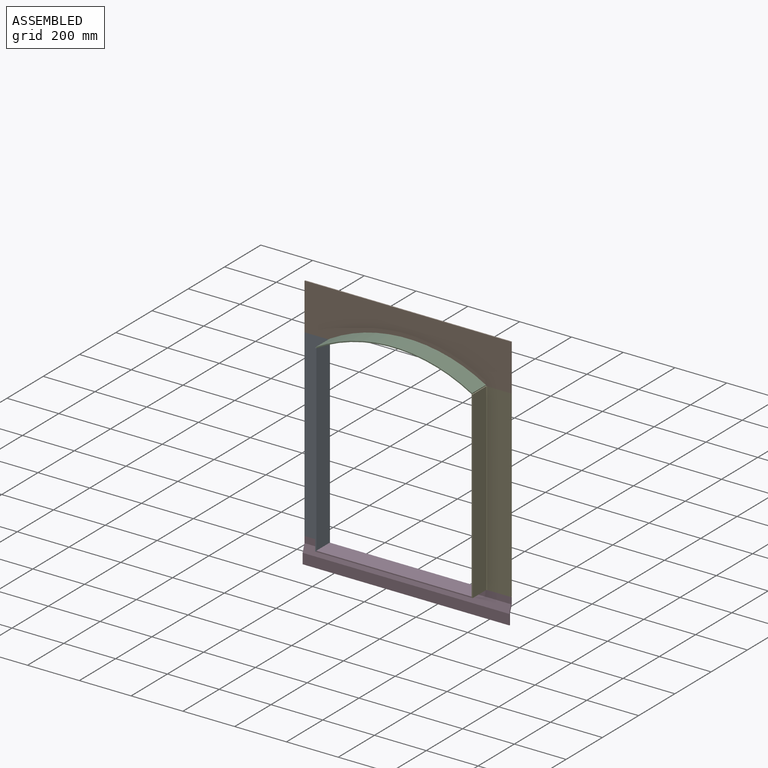
[diagram: assembled view]
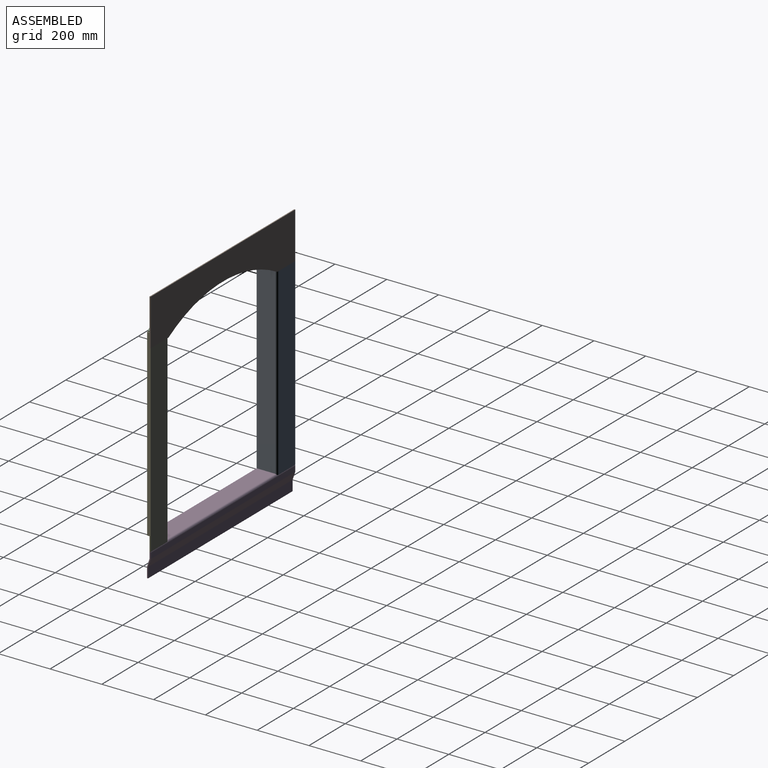
[diagram: assembled view, second angle]
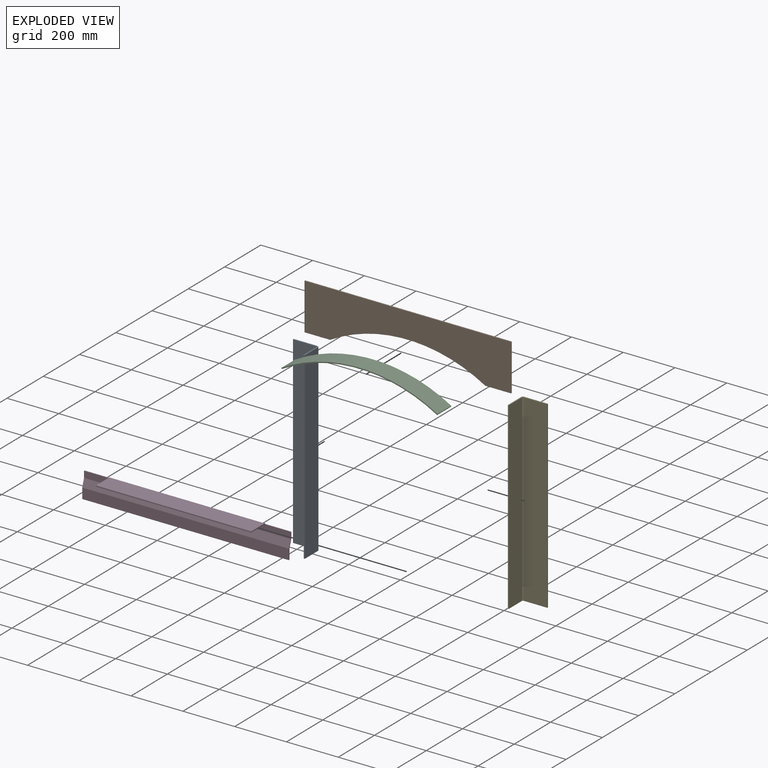
[diagram: exploded view]
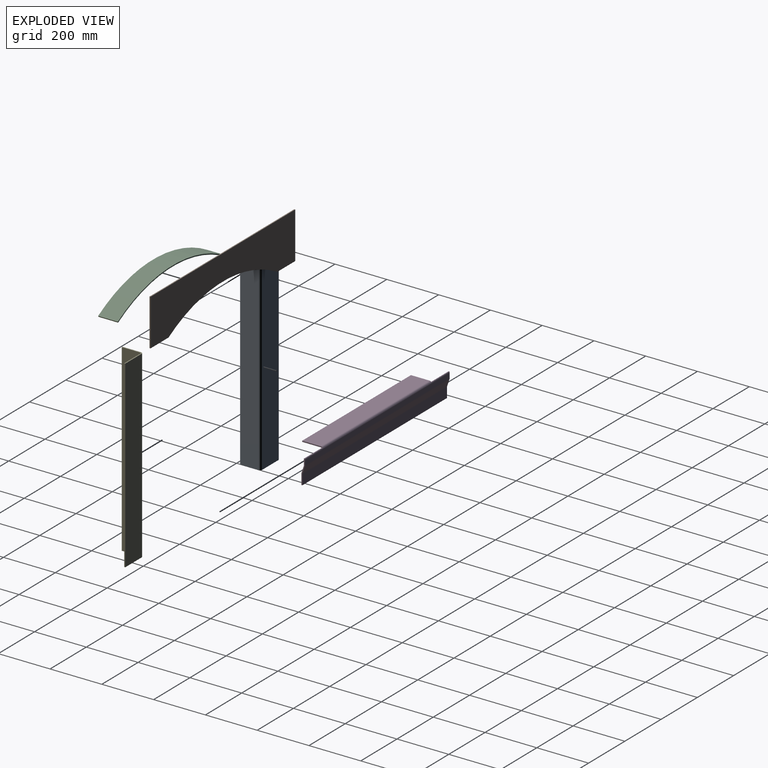
[diagram: exploded view, second angle]
ASSEMBLY  parts=5 mates=10
PART A: 10 faces, bbox 711x80x99 mm
  f0: plane 711x91mm, normal (0,1,0), area 64701mm2, adj f1,f6,f7,f9
  f1: plane 711x4mm, normal (0,0,1), area 2844mm2, adj f0,f2,f6,f7
  f2: plane 711x91mm, normal (0,-1,0), area 64701mm2, adj f1,f6,f7,f8
  f3: plane 711x72mm, normal (0,0,1), area 51192mm2, adj f4,f6,f7,f8
  f4: plane 711x4mm, normal (0,-1,0), area 2844mm2, adj f3,f5,f6,f7
  f5: plane 711x72mm, normal (0,0,-1), area 51192mm2, adj f4,f6,f7,f9
  f6: plane 99x80mm, normal (1,0,0), area 689.7mm2, adj f0,f1,f2,f3,f4,f5,f8,f9
  f7: plane 99x80mm, normal (-1,0,0), area 689.7mm2, adj f0,f1,f2,f3,f4,f5,f8,f9
  f8: cylinder r=4mm len=711mm, axis (1,0,0), area 4467.3mm2, adj f2,f3,f6,f7
  f9: cylinder r=8mm len=711mm, axis (-1,0,0), area 8934.7mm2, adj f0,f5,f6,f7
PART B: 8 faces, bbox 798x4x180 mm
  f0: cylinder r=596.06mm len=600mm, axis (0,1,0), area 2515mm2, adj f1,f5,f6,f7
  f1: plane 99x4mm, normal (0,0,-1), area 396mm2, adj f0,f2,f6,f7
  f2: plane 180x4mm, normal (1,0,0), area 720mm2, adj f1,f3,f6,f7
  f3: plane 798x4mm, normal (0,0,1), area 3192mm2, adj f2,f4,f6,f7
  f4: plane 180x4mm, normal (-1,0,0), area 720mm2, adj f3,f5,f6,f7
  f5: plane 99x4mm, normal (0,0,-1), area 396mm2, adj f0,f4,f6,f7
  f6: plane 798x180mm, normal (0,-1,0), area 110772.4mm2, adj f0,f1,f2,f3,f4,f5
  f7: plane 798x180mm, normal (0,1,0), area 110772.4mm2, adj f0,f1,f2,f3,f4,f5
PART C: 6 faces, bbox 604x76x85 mm
  f0: plane 76x3.46mm, normal (-0.86,0,-0.5), area 304mm2, adj f1,f3,f4,f5
  f1: cylinder r=596.06mm len=600mm, axis (0,1,0), area 47784.8mm2, adj f0,f2,f4,f5
  f2: plane 76x3.46mm, normal (0.86,0,-0.5), area 304mm2, adj f1,f3,f4,f5
  f3: cylinder r=600.06mm len=604.03mm, axis (0,1,0), area 48105.5mm2, adj f0,f2,f4,f5
  f4: plane 604.03x85mm, normal (0,-1,0), area 2523.4mm2, adj f0,f1,f2,f3
  f5: plane 604.03x85mm, normal (0,1,0), area 2523.4mm2, adj f0,f1,f2,f3
PART D: 18 faces, bbox 798x80x99 mm
  f0: plane 600x72mm, normal (0,0,1), area 43200mm2, adj f1,f12,f14,f17
  f1: plane 600x4mm, normal (0,-1,0), area 2400mm2, adj f0,f2,f12,f14
  f2: plane 600x72mm, normal (0,0,-1), area 43200mm2, adj f1,f12,f14,f16
  f3: plane 95x14mm, normal (1,0,0), area 378.6mm2, adj f5,f6,f7,f8,f9,f10,f11,f15
  f4: plane 95x14mm, normal (-1,0,0), area 378.6mm2, adj f5,f6,f7,f8,f9,f10,f11,f13
  f5: plane 798x25mm, normal (0,-1,0), area 17550mm2, adj f3,f4,f6,f12,f13,f14,f15,f16
  f6: plane 798x30mm, normal (0,-0.95,0.32), area 25235mm2, adj f3,f4,f5,f7
  f7: plane 798x40mm, normal (0,-1,0), area 31920mm2, adj f3,f4,f6,f8
  f8: plane 798x4mm, normal (0,0,-1), area 3192mm2, adj f3,f4,f7,f9
  f9: plane 798x40mm, normal (0,1,0), area 31920mm2, adj f3,f4,f8,f10
  f10: plane 798x30mm, normal (0,0.95,-0.32), area 25235mm2, adj f3,f4,f9,f11
  f11: plane 798x21mm, normal (0,1,0), area 16758mm2, adj f3,f4,f10,f17
  f12: plane 78.93x8mm, normal (-1,0,0), area 311.1mm2, adj f0,f1,f2,f5,f13,f16,f17
  f13: plane 99x2.93mm, normal (0,0,1), area 289.9mm2, adj f4,f5,f12,f17
  f14: plane 78.93x8mm, normal (1,0,0), area 311.1mm2, adj f0,f1,f2,f5,f15,f16,f17
  f15: plane 99x2.93mm, normal (0,0,1), area 289.9mm2, adj f3,f5,f14,f17
  f16: cylinder r=4mm len=600mm, axis (1,0,0), area 3769.9mm2, adj f2,f5,f12,f14
  f17: cylinder r=8mm len=798mm, axis (-1,0,0), area 8369.2mm2, adj f0,f3,f4,f11,f12,f13,f14,f15
PART E: same geometry as A
PLACE A rot(axis=(0,-1,0),90deg) t=(-496.99,-172.74,-408.62)mm
PLACE B t=(-308.89,-101.11,-1223.96)mm
PLACE C t=(-198.79,-105.11,-1000.81)mm
PLACE D t=(-496.99,7.16,-1372.47)mm
PLACE E rot(axis=(0,1,0),90deg) t=(301.01,-172.74,-1478.15)mm
MATE planar D.f12 <-> A.f5  axis (-1,0,0) through (-397.99,-142.24,-1296.94)mm
MATE planar A.f2 <-> B.f6  axis (0,-1,0) through (-451.49,-105.11,-943.39)mm
MATE fastened C.f1 <-> B.f0  axis (0,1,0) through (-97.99,-143.11,-1102.94)mm
MATE planar B.f6 <-> C.f5  axis (0,-1,0) through (-97.99,-105.11,-480.86)mm
MATE planar D.f13 <-> A.f7  axis (0,0,1) through (-447.49,-103.65,-1298.89)mm
MATE planar A.f1 <-> B.f4  axis (-1,0,0) through (-496.99,-103.11,-943.39)mm
MATE planar A.f2 <-> D.f5  axis (0,-1,0) through (-451.49,-105.11,-943.39)mm
MATE planar E.f1 <-> B.f2  axis (1,0,0) through (301.01,-103.11,-943.39)mm
MATE planar E.f7 <-> B.f1  axis (0,0,1) through (231.3,-120.76,-587.89)mm
MATE planar A.f6 <-> B.f5  axis (0,0,1) through (-427.28,-120.76,-587.89)mm
